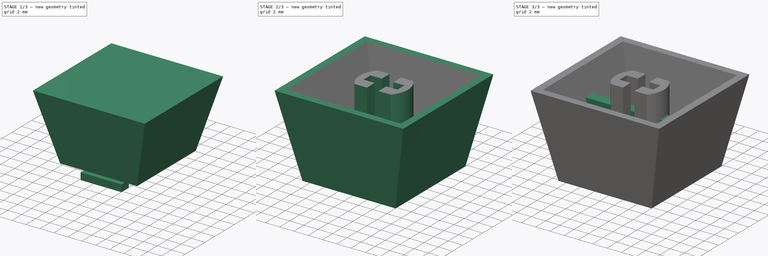
[diagram: build sequence overview — one tinted view per stage of 3, left to right]
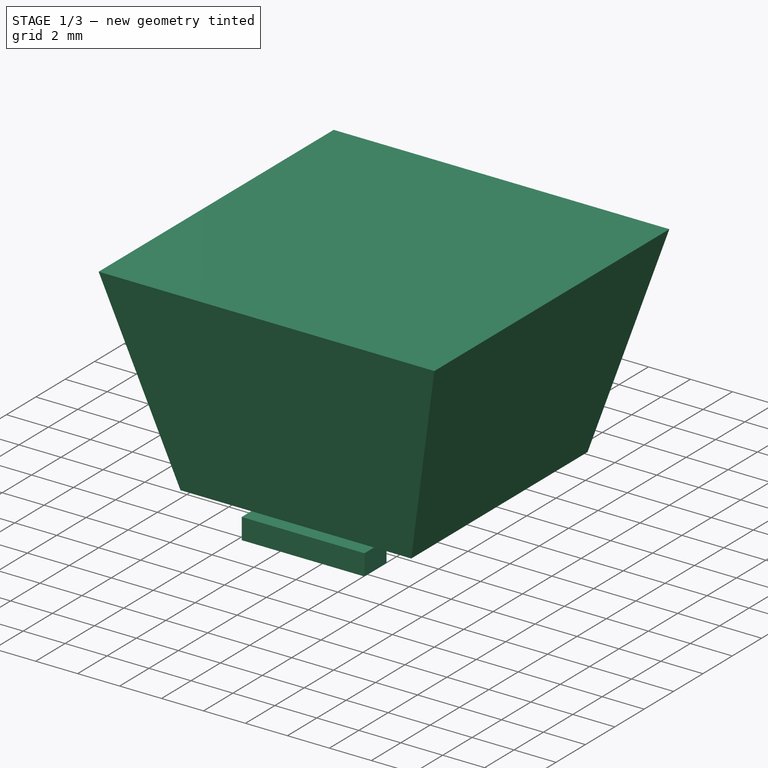
[diagram: stage 1 of 3 — iso view after this stage's code; geometry added in this stage tinted green]
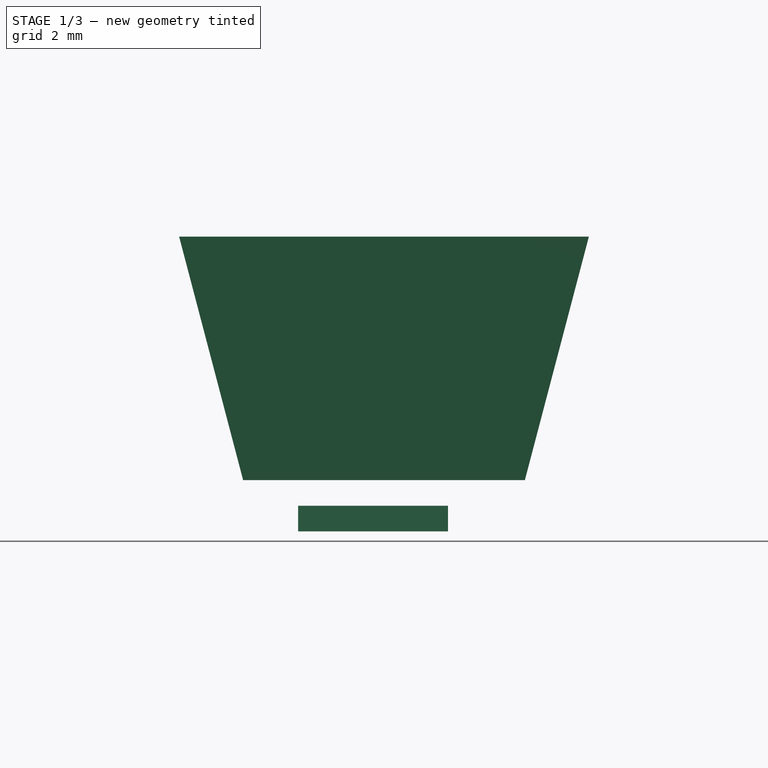
[diagram: stage 1 of 3 — front view after this stage's code; geometry added in this stage tinted green]
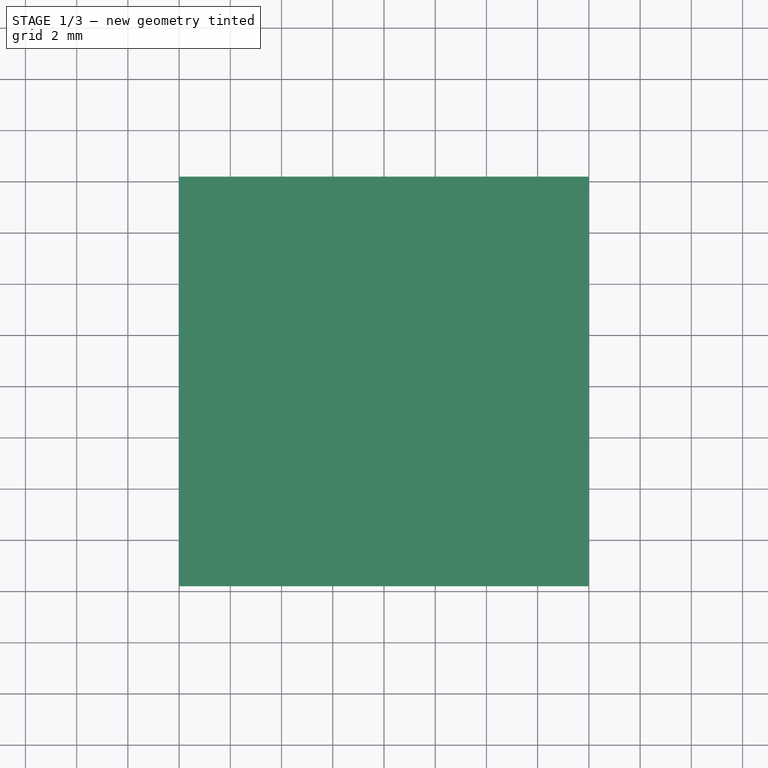
[diagram: stage 1 of 3 — top view after this stage's code; geometry added in this stage tinted green]
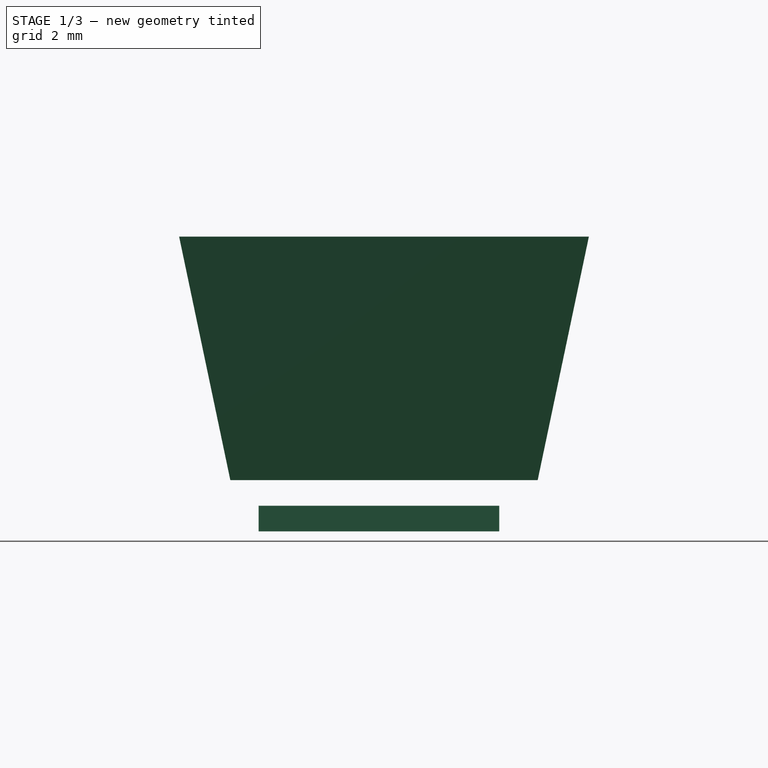
[diagram: stage 1 of 3 — right view after this stage's code; geometry added in this stage tinted green]
FCSTD DOCUMENT  (FreeCAD 0.20R25453 (Git))
Label: KeyCap
License: All rights reserved
LicenseURL: http://en.wikipedia.org/wiki/All_rights_reserved
objects: Sketcher::SketchObject×7, PartDesign::AdditiveLoft×3, PartDesign::Body×2, PartDesign::Boolean×1, PartDesign::Pad×1, Part::Part2DObjectPython×1, Part::Extrusion×1, Part::Cut×1
note: 21 computed .brp shape members not serialized (recipe doc carries the construction recipe); baked Part::Feature solids carry a one-line shape summary decoded from their .brp

FEATURE [Sketcher::SketchObject] Sketch002
  AttachmentOffset = pos=(0,0,2) rot=(0,0,1;0rad)
  FullyConstrained = true
  MapMode = 5
  Placement = pos=(0,0,2) rot=(0,0,1;0rad)
  Support = -> [XY_Plane001]
  sketch-geometry (4):
    g0: LineSegment StartX=-5.5 StartY=6 StartZ=0 EndX=5.5 EndY=6 EndZ=0
    g1: LineSegment StartX=5.5 StartY=6 StartZ=0 EndX=5.5 EndY=-6 EndZ=0
    g2: LineSegment StartX=5.5 StartY=-6 StartZ=0 EndX=-5.5 EndY=-6 EndZ=0
    g3: LineSegment StartX=-5.5 StartY=-6 StartZ=0 EndX=-5.5 EndY=6 EndZ=0
  constraints (11):
    c: Coincident(g0,g1)
    c: Coincident(g1,g2)
    c: Coincident(g2,g3)
    c: Coincident(g3,g0)
    c: Horizontal(g0)
    c: Horizontal(g2)
    c: Vertical(g1)
    c: Vertical(g3)
    c: Symmetric(g1,g0,g-1)
    c: DistanceX(g0,g0) = 11
    c: DistanceY(g3,g3) = 12
FEATURE [Sketcher::SketchObject] Sketch003
  AttachmentOffset = pos=(0,0,11.51) rot=(0,0,1;0rad)
  FullyConstrained = true
  MapMode = 5
  Placement = pos=(0,0,11.51) rot=(0,0,1;0rad)
  Support = -> [XY_Plane001]
  sketch-geometry (4):
    g0: LineSegment StartX=-8 StartY=8 StartZ=0 EndX=8 EndY=8 EndZ=0
    g1: LineSegment StartX=8 StartY=8 StartZ=0 EndX=8 EndY=-8 EndZ=0
    g2: LineSegment StartX=8 StartY=-8 StartZ=0 EndX=-8 EndY=-8 EndZ=0
    g3: LineSegment StartX=-8 StartY=-8 StartZ=0 EndX=-8 EndY=8 EndZ=0
  constraints (11):
    c: Coincident(g0,g1)
    c: Coincident(g1,g2)
    c: Coincident(g2,g3)
    c: Coincident(g3,g0)
    c: Horizontal(g0)
    c: Horizontal(g2)
    c: Vertical(g1)
    c: Vertical(g3)
    c: Symmetric(g1,g0,g-1)
    c: DistanceX(g0,g0) = 16
    c: DistanceY(g1,g1) = 16
FEATURE [PartDesign::AdditiveLoft] AdditiveLoft001
  Closed = false
  Profile = -> Sketch002
  Ruled = false
  Sections = -> [Sketch003]
FEATURE [PartDesign::Body] Body
  Group = -> [Sketch001,AdditiveLoft,Sketch,Boolean,Sketch005,Pad,Sketch006,Sketch007,AdditiveLoft002]
  Origin = -> Origin
  Tip = -> AdditiveLoft002
FEATURE [Part::Part2DObjectPython] ShapeString  # Draft 2D object (typed FeaturePython)
  FontFile = <path>
  Placement = pos=(-4.5,4.5,0) rot=(1,0,0;3.14159rad)
  Size = 10
  String = F
  Tracking = 0
FEATURE [Part::Extrusion] Extrusion
  Base = -> ShapeString
  Dir = (0,0,1)
  DirMode = 0
  FaceMakerClass = Part::FaceMakerBullseye
  LengthFwd = 0
  LengthRev = 0
  Solid = true
  Symmetric = false
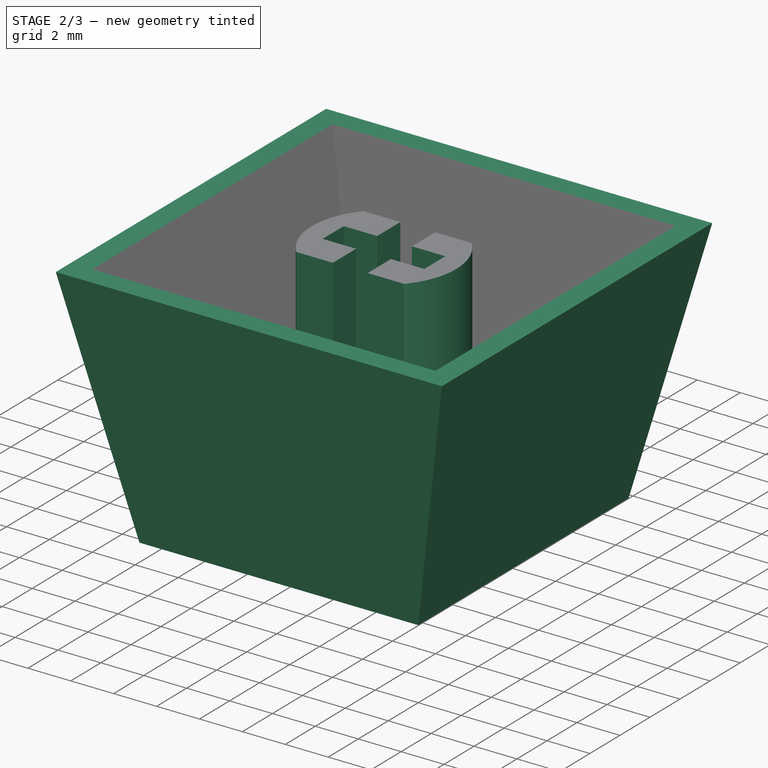
[diagram: stage 2 of 3 — iso view after this stage's code; geometry added in this stage tinted green]
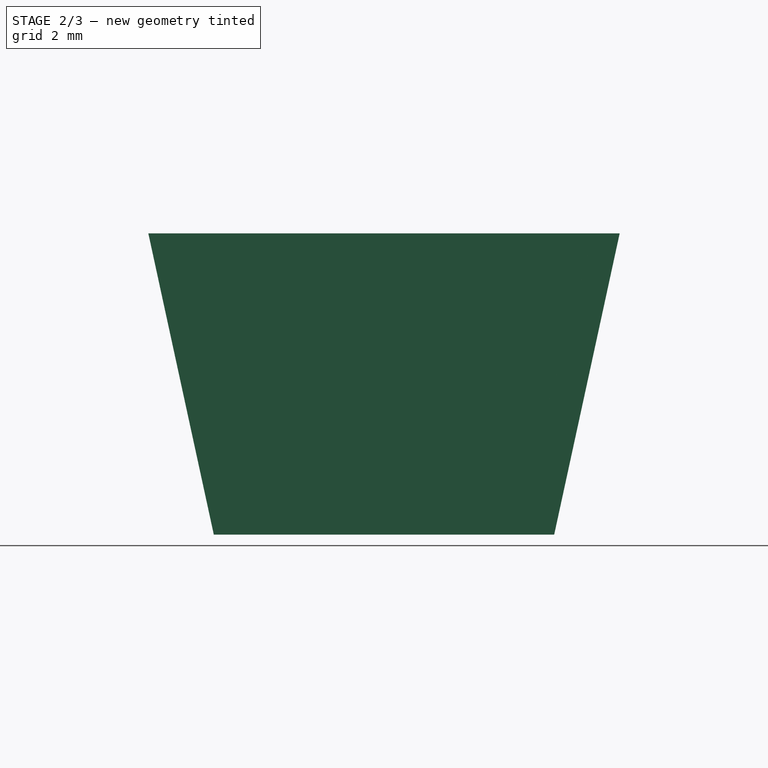
[diagram: stage 2 of 3 — front view after this stage's code; geometry added in this stage tinted green]
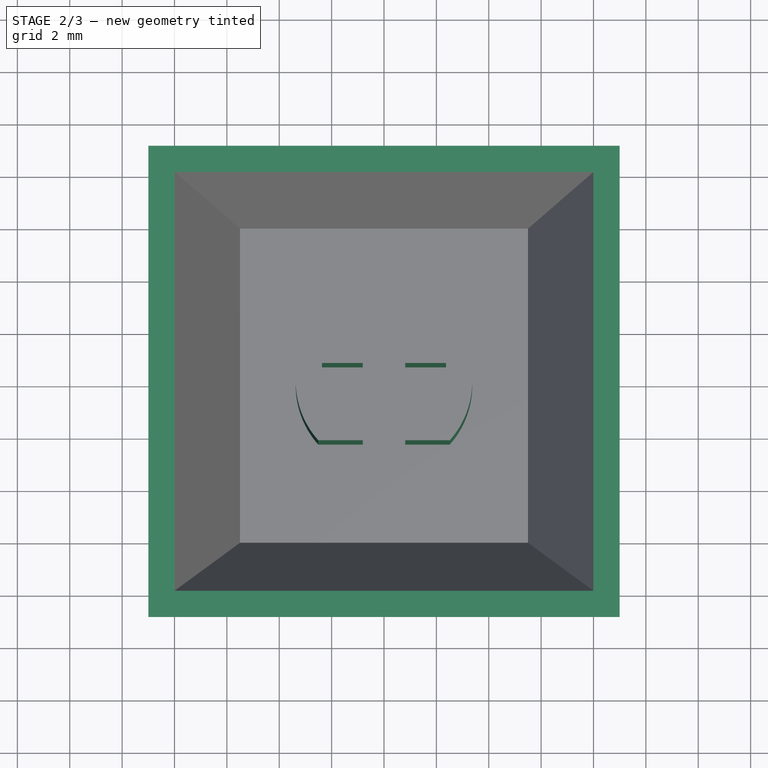
[diagram: stage 2 of 3 — top view after this stage's code; geometry added in this stage tinted green]
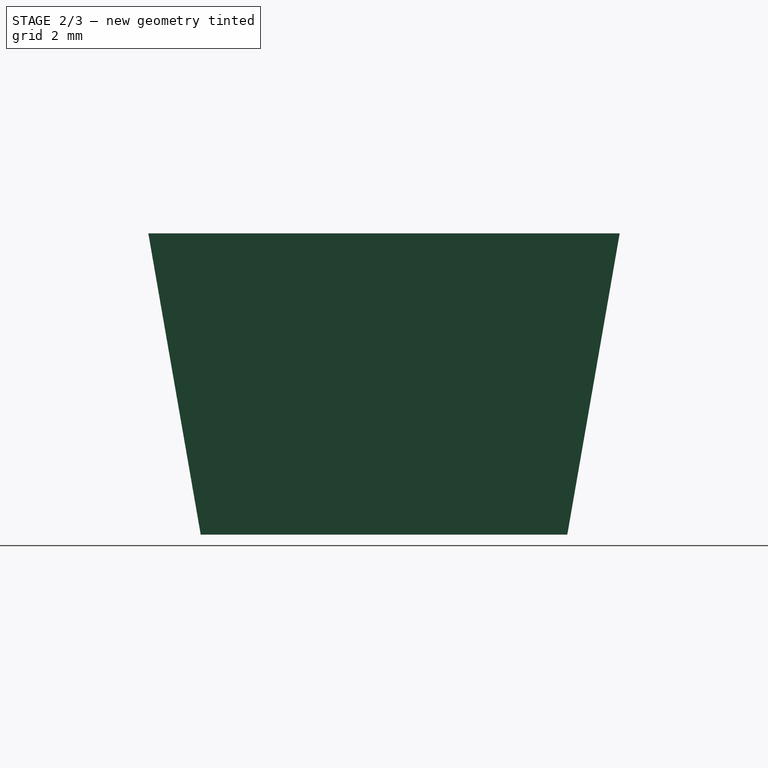
[diagram: stage 2 of 3 — right view after this stage's code; geometry added in this stage tinted green]
FEATURE [Sketcher::SketchObject] Sketch
  FullyConstrained = true
  MapMode = 5
  Support = -> [XY_Plane]
  sketch-geometry (4):
    g0: LineSegment StartX=-6.5 StartY=7 StartZ=0 EndX=6.5 EndY=7 EndZ=0
    g1: LineSegment StartX=6.5 StartY=7 StartZ=0 EndX=6.5 EndY=-7 EndZ=0
    g2: LineSegment StartX=6.5 StartY=-7 StartZ=0 EndX=-6.5 EndY=-7 EndZ=0
    g3: LineSegment StartX=-6.5 StartY=-7 StartZ=0 EndX=-6.5 EndY=7 EndZ=0
  constraints (11):
    c: Coincident(g0,g1)
    c: Coincident(g1,g2)
    c: Coincident(g2,g3)
    c: Coincident(g3,g0)
    c: Horizontal(g0)
    c: Horizontal(g2)
    c: Vertical(g1)
    c: Vertical(g3)
    c: Symmetric(g0,g1,g-1)
    c: DistanceY(g3,g3) = 14
    c: DistanceX(g0,g0) = 13
FEATURE [Sketcher::SketchObject] Sketch001
  AttachmentOffset = pos=(0,0,11.5) rot=(0,0,1;0rad)
  FullyConstrained = true
  MapMode = 5
  Placement = pos=(0,0,11.5) rot=(0,0,1;0rad)
  Support = -> [XY_Plane]
  sketch-geometry (4):
    g0: LineSegment StartX=-9 StartY=9 StartZ=0 EndX=9 EndY=9 EndZ=0
    g1: LineSegment StartX=9 StartY=9 StartZ=0 EndX=9 EndY=-9 EndZ=0
    g2: LineSegment StartX=9 StartY=-9 StartZ=0 EndX=-9 EndY=-9 EndZ=0
    g3: LineSegment StartX=-9 StartY=-9 StartZ=0 EndX=-9 EndY=9 EndZ=0
  constraints (11):
    c: Coincident(g0,g1)
    c: Coincident(g1,g2)
    c: Coincident(g2,g3)
    c: Coincident(g3,g0)
    c: Horizontal(g0)
    c: Horizontal(g2)
    c: Vertical(g1)
    c: Vertical(g3)
    c: Symmetric(g1,g0,g-1)
    c: DistanceY(g3,g3) = 18
    c: DistanceX(g0,g0) = 18
FEATURE [PartDesign::AdditiveLoft] AdditiveLoft
  Closed = false
  Profile = -> Sketch
  Ruled = false
  Sections = -> [Sketch001]
FEATURE [PartDesign::Body] Body001  label="Cavity"
  Group = -> [Sketch003,Sketch002,AdditiveLoft001]
  Origin = -> Origin001
  Tip = -> AdditiveLoft001
FEATURE [PartDesign::Boolean] Boolean
  BaseFeature = -> AdditiveLoft
  Group = -> [Body001]
  Type = 1
FEATURE [Sketcher::SketchObject] Sketch005
  FullyConstrained = true
  MapMode = 5
  Placement = pos=(0,0,2) rot=(0,0,1;0rad)
  Support = -> [Boolean]
  sketch-geometry (16):
    g0: LineSegment StartX=-2.51 StartY=2.25 StartZ=0 EndX=-0.81 EndY=2.25 EndZ=0
    g1: LineSegment StartX=-0.81 StartY=2.25 StartZ=0 EndX=-0.81 EndY=0.7 EndZ=0
    g2: LineSegment StartX=-0.81 StartY=0.7 StartZ=0 EndX=-2.37 EndY=0.7 EndZ=0
    g3: LineSegment StartX=-2.37 StartY=0.7 StartZ=0 EndX=-2.37 EndY=-0.7 EndZ=0
    g4: LineSegment StartX=-2.37 StartY=-0.7 StartZ=0 EndX=-0.81 EndY=-0.7 EndZ=0
    g5: LineSegment StartX=-0.81 StartY=-0.7 StartZ=0 EndX=-0.81 EndY=-2.25 EndZ=0
    g6: LineSegment StartX=-0.81 StartY=-2.25 StartZ=0 EndX=-2.51 EndY=-2.25 EndZ=0
    g7: ArcOfCircle CenterX=0 CenterY=0 CenterZ=0 NormalX=0 NormalY=0 NormalZ=1 AngleXU=0 Radius=3.37085 StartAngle=2.41076 EndAngle=3.87242
    g8: LineSegment StartX=2.51 StartY=2.25 StartZ=0 EndX=0.81 EndY=2.25 EndZ=0
    g9: LineSegment StartX=0.81 StartY=2.25 StartZ=0 EndX=0.81 EndY=0.7 EndZ=0
    g10: LineSegment StartX=0.81 StartY=0.7 StartZ=0 EndX=2.37 EndY=0.7 EndZ=0
    g11: LineSegment StartX=2.37 StartY=0.7 StartZ=0 EndX=2.37 EndY=-0.7 EndZ=0
    g12: LineSegment StartX=2.37 StartY=-0.7 StartZ=0 EndX=0.81 EndY=-0.7 EndZ=0
    g13: LineSegment StartX=0.81 StartY=-0.7 StartZ=0 EndX=0.81 EndY=-2.25 EndZ=0
    g14: LineSegment StartX=0.81 StartY=-2.25 StartZ=0 EndX=2.51 EndY=-2.25 EndZ=0
    g15: ArcOfCircle CenterX=0 CenterY=0 CenterZ=0 NormalX=0 NormalY=0 NormalZ=1 AngleXU=0 Radius=3.37085 StartAngle=5.55235 EndAngle=7.01402
  constraints (46):
    c: Horizontal(g0)
    c: Coincident(g0,g1)
    c: Vertical(g1)
    c: Coincident(g1,g2)
    c: Horizontal(g2)
    c: Coincident(g2,g3)
    c: Vertical(g3)
    c: Coincident(g3,g4)
    c: Horizontal(g4)
    c: Coincident(g4,g5)
    c: Coincident(g5,g6)
    c: Horizontal(g6)
    c: Symmetric(g1,g4,g-1)
    c: Coincident(g7,g-1)
    c: Coincident(g7,g0)
    c: Coincident(g7,g6)
    c: DistanceX(g2,g2) = 1.56
    c: DistanceY(g3,g3) = 1.4
    c: Symmetric(g5,g0,g-1)
    c: DistanceY(g5,g0) = 4.5
    c: DistanceX(g1,g7) = 0.81
    c: DistanceX(g0,g0) = 1.7
    c: Horizontal(g8)
    c: Coincident(g8,g9)
    c: Vertical(g9)
    c: Coincident(g9,g10)
    c: Horizontal(g10)
    c: Coincident(g10,g11)
    c: Coincident(g11,g12)
    c: Coincident(g12,g13)
    c: Coincident(g13,g14)
    c: Coincident(g15,g7)
    c: Coincident(g15,g8)
    c: Coincident(g15,g14)
    c: Horizontal(g9,g1)
    c: Horizontal(g12,g4)
    c: Horizontal(g12)
    c: Vertical(g11)
    c: Horizontal(g14)
    c: Vertical(g13)
    c: Equal(g2,g10)
    c: Horizontal(g8,g0)
    c: Horizontal(g13,g5)
    c: Vertical(g9,g12)
    c: DistanceX(g7,g9) = 0.81
    c: Equal(g8,g0)
FEATURE [PartDesign::Pad] Pad
  BaseFeature = -> Boolean
  Direction = (0,0,1)
  Length = 9.5
  Length2 = 100
  Profile = -> Sketch005
  Type = 0
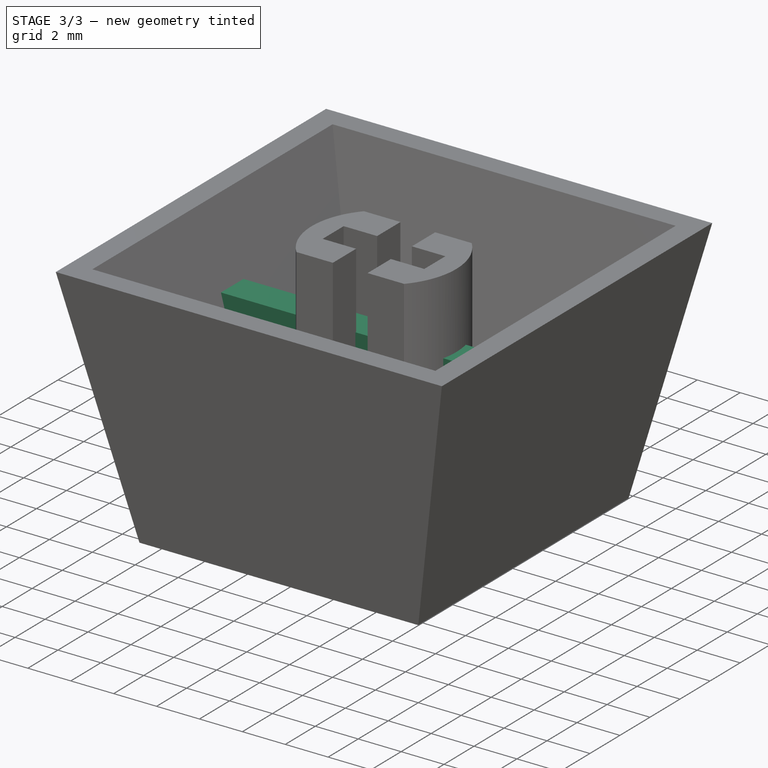
[diagram: stage 3 of 3 — iso view after this stage's code; geometry added in this stage tinted green]
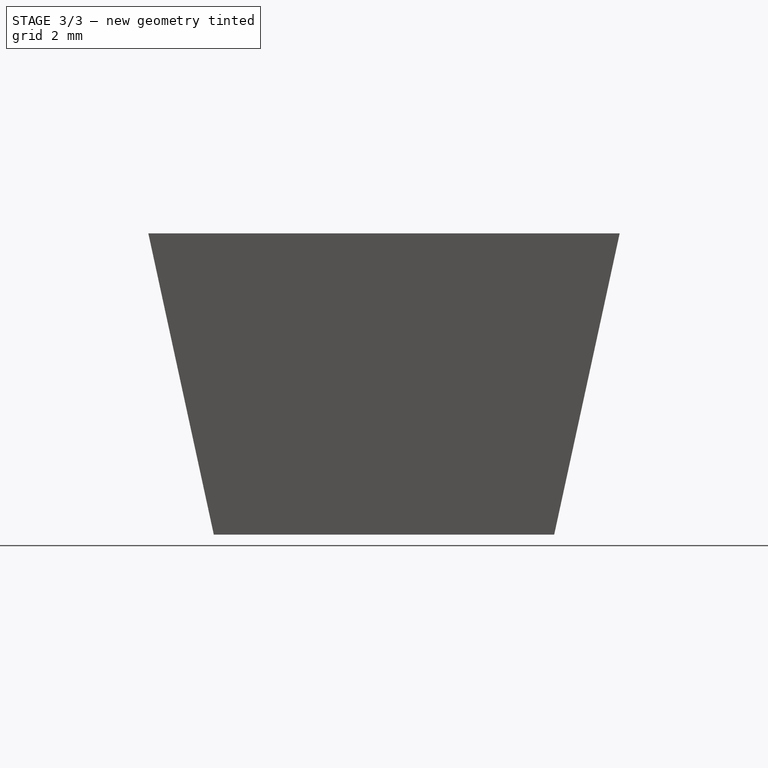
[diagram: stage 3 of 3 — front view after this stage's code; geometry added in this stage tinted green]
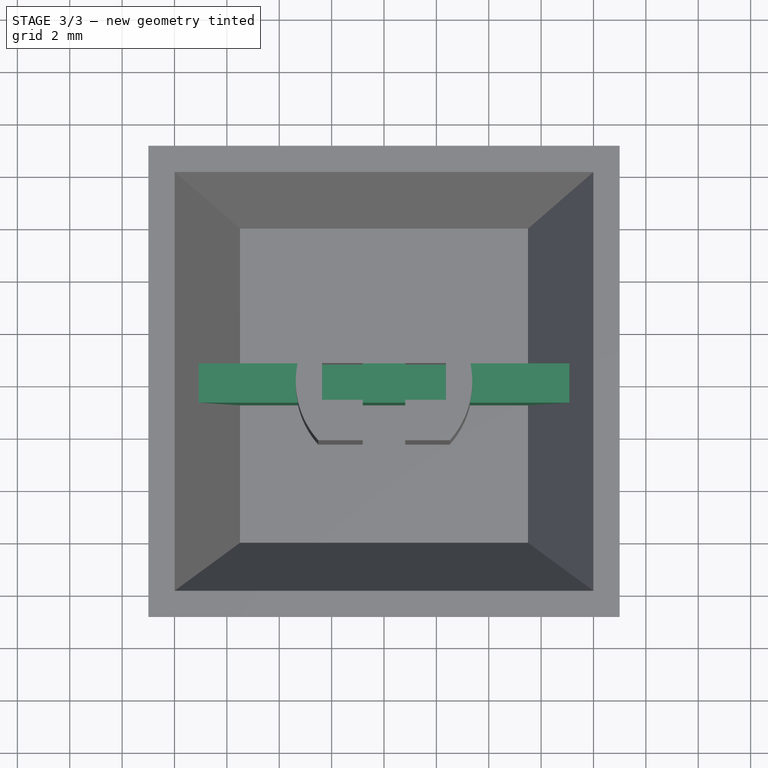
[diagram: stage 3 of 3 — top view after this stage's code; geometry added in this stage tinted green]
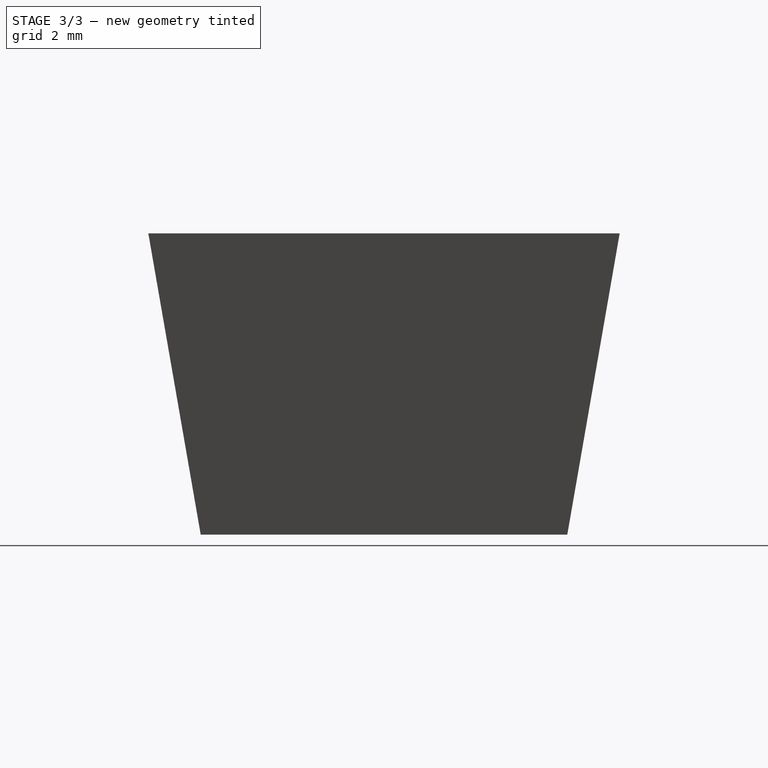
[diagram: stage 3 of 3 — right view after this stage's code; geometry added in this stage tinted green]
FEATURE [Sketcher::SketchObject] Sketch006
  ExternalGeometry = -> [Pad]
  FullyConstrained = true
  MapMode = 5
  Placement = pos=(0,0,2) rot=(0,0,1;0rad)
  Support = -> [Pad]
  sketch-geometry (4):
    g0: LineSegment StartX=-5.5 StartY=0.75 StartZ=0 EndX=5.5 EndY=0.75 EndZ=0
    g1: LineSegment StartX=5.5 StartY=0.75 StartZ=0 EndX=5.5 EndY=-0.75 EndZ=0
    g2: LineSegment StartX=5.5 StartY=-0.75 StartZ=0 EndX=-5.5 EndY=-0.75 EndZ=0
    g3: LineSegment StartX=-5.5 StartY=-0.75 StartZ=0 EndX=-5.5 EndY=0.75 EndZ=0
  constraints (11):
    c: Coincident(g0,g1)
    c: Coincident(g1,g2)
    c: Coincident(g2,g3)
    c: Coincident(g3,g0)
    c: Horizontal(g0)
    c: Horizontal(g2)
    c: Vertical(g1)
    c: Vertical(g3)
    c: Symmetric(g1,g0,g-1)
    c: PointOnObject(g0,g-3)
    c: DistanceY(g3,g3) = 1.5
FEATURE [Sketcher::SketchObject] Sketch007
  AttachmentOffset = pos=(0,0,6) rot=(0,0,1;0rad)
  ExternalGeometry = -> [Sketch006]
  FullyConstrained = true
  MapMode = 5
  Placement = pos=(0,0,8) rot=(0,0,1;0rad)
  Support = -> [Pad]
  sketch-geometry (4):
    g0: LineSegment StartX=-7.25 StartY=0.75 StartZ=0 EndX=7.25 EndY=0.75 EndZ=0
    g1: LineSegment StartX=7.25 StartY=0.75 StartZ=0 EndX=7.25 EndY=-0.75 EndZ=0
    g2: LineSegment StartX=7.25 StartY=-0.75 StartZ=0 EndX=-7.25 EndY=-0.75 EndZ=0
    g3: LineSegment StartX=-7.25 StartY=-0.75 StartZ=0 EndX=-7.25 EndY=0.75 EndZ=0
  constraints (11):
    c: Coincident(g0,g1)
    c: Coincident(g1,g2)
    c: Coincident(g2,g3)
    c: Coincident(g3,g0)
    c: Horizontal(g0)
    c: Horizontal(g2)
    c: Vertical(g1)
    c: Vertical(g3)
    c: Symmetric(g0,g1,g-1)
    c: Horizontal(g2,g-3)
    c: DistanceX(g2,g2) = 14.5
FEATURE [PartDesign::AdditiveLoft] AdditiveLoft002
  BaseFeature = -> Pad
  Closed = false
  Profile = -> Sketch006
  Ruled = false
  Sections = -> [Sketch007]
FEATURE [Part::Cut] Cut
  Base = -> Body
  Tool = -> Extrusion
note: 1 file-system path scrubbed to <path> (originals preserved in the JSON sidecar)
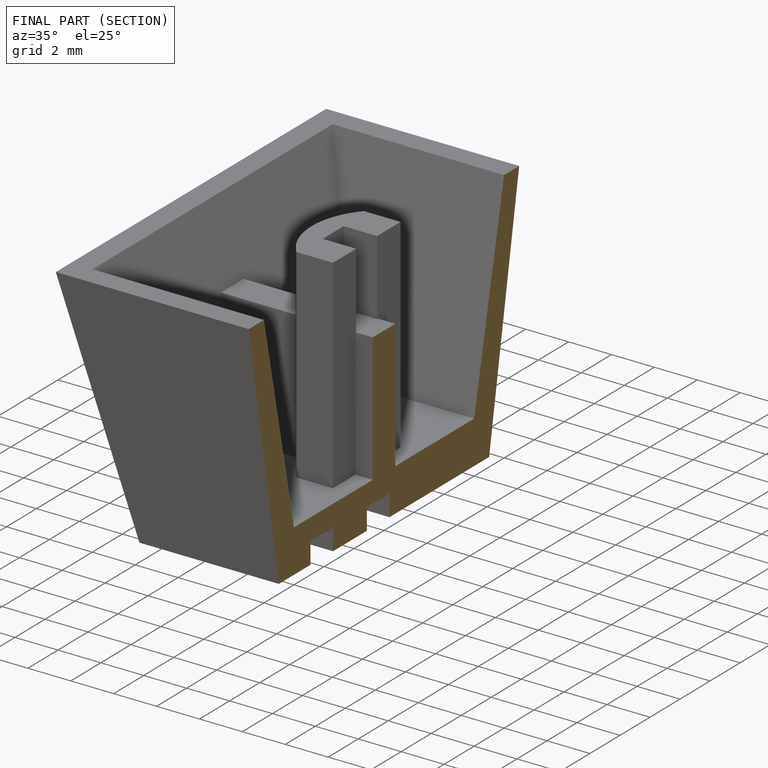
[diagram: finished part — half-section view (interior)]
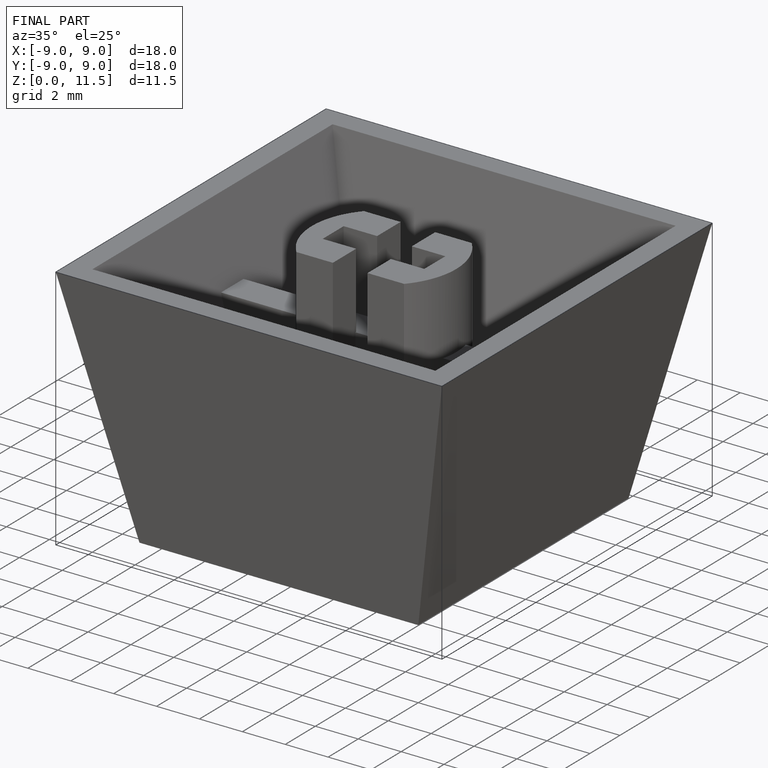
[diagram: finished part — iso view with bounding-box wireframe]
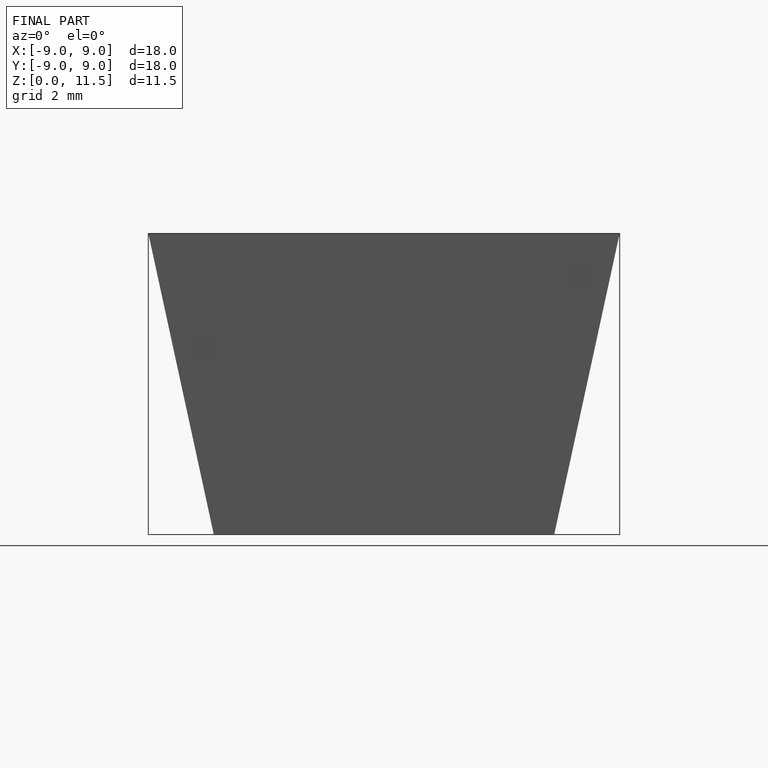
[diagram: finished part — front view with bounding-box wireframe]
